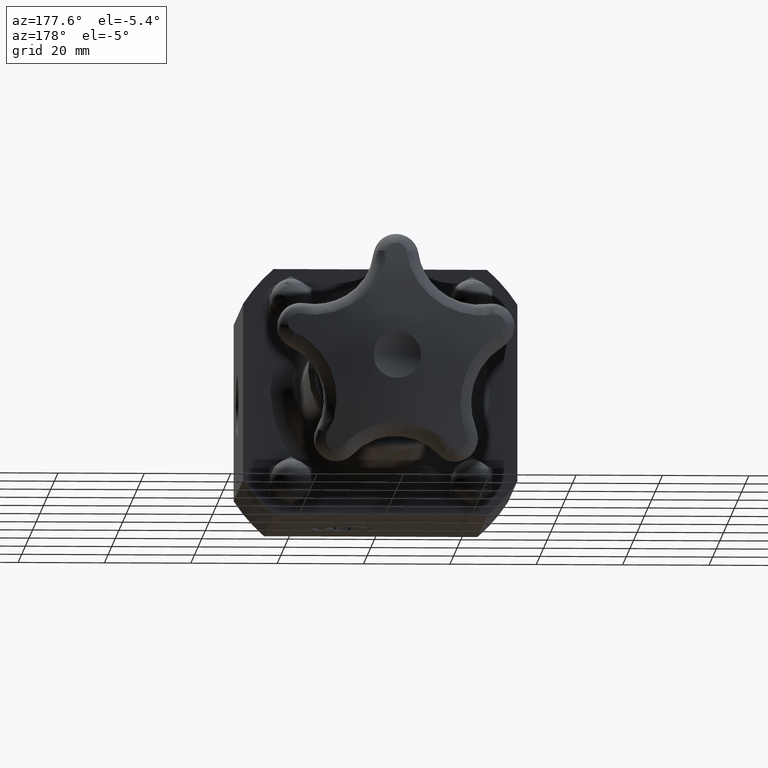
[diagram: clean part render]
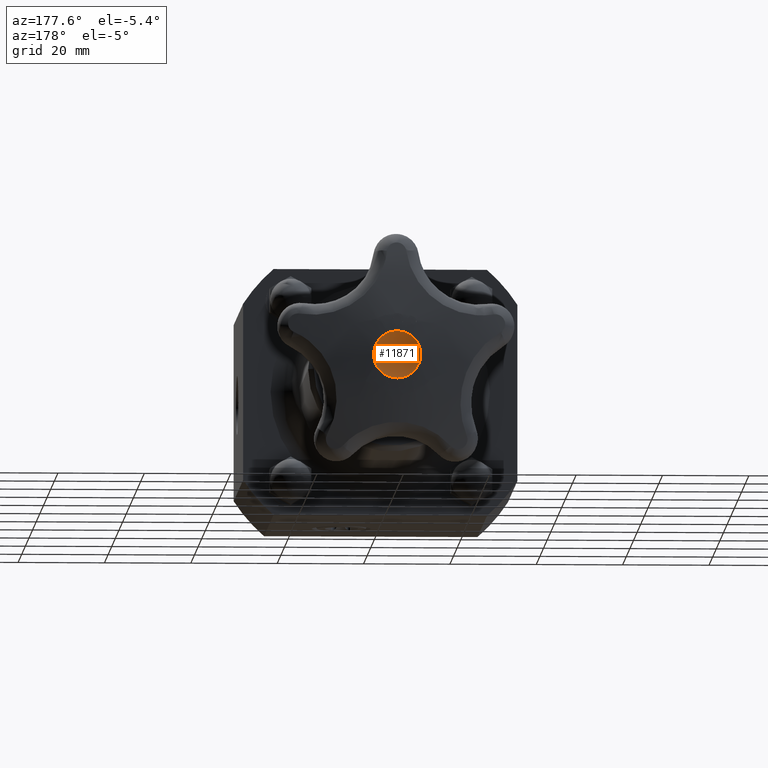
[diagram: same view with one face highlighted and labeled with its STEP entity id]
A machine part, auxiliary view. The second image highlights one B-rep face of the part: STEP entity #11871.
In plain terms, the highlighted spherical surface has radius 12.5192 mm.
Its self-contained STEP definition (entity closure, byte-faithful):
#11771=CARTESIAN_POINT('',(2.277718E-016,5.751663742261952,0.216000000000001));
#11772=VERTEX_POINT('',#11771);
#11773=CARTESIAN_POINT('',(1.928583E-016,5.751663742261951,6.032056E-016));
#11774=DIRECTION('',(0.0,-1.0,0.0));
#11775=DIRECTION('',(0.0,0.0,1.0));
#11776=AXIS2_PLACEMENT_3D('',#11773,#11774,#11775);
#11777=CIRCLE('',#11776,0.215999999999998);
#11778=EDGE_CURVE('',#11772,#11772,#11777,.T.);
#11863=CARTESIAN_POINT('',(2.277718E-016,6.194696697026294,6.119340E-016));
#11864=DIRECTION('',(0.0,0.0,1.0));
#11865=DIRECTION('',(1.0,0.0,0.0));
#11866=AXIS2_PLACEMENT_3D('',#11863,#11864,#11865);
#11867=SPHERICAL_SURFACE('',#11866,0.492883555220930);
#11868=ORIENTED_EDGE('',*,*,#11778,.F.);
#11869=EDGE_LOOP('',(#11868));
#11870=FACE_OUTER_BOUND('',#11869,.T.);
#11871=ADVANCED_FACE('',(#11870),#11867,.F.);